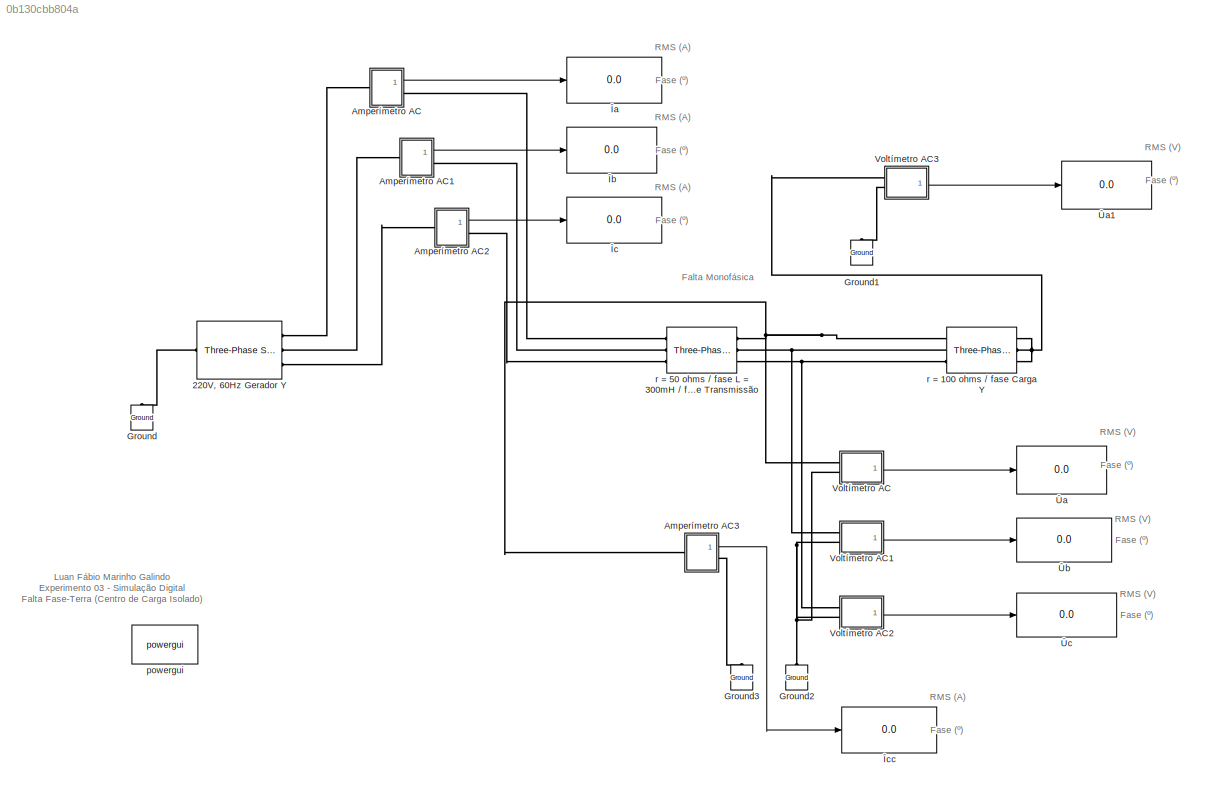
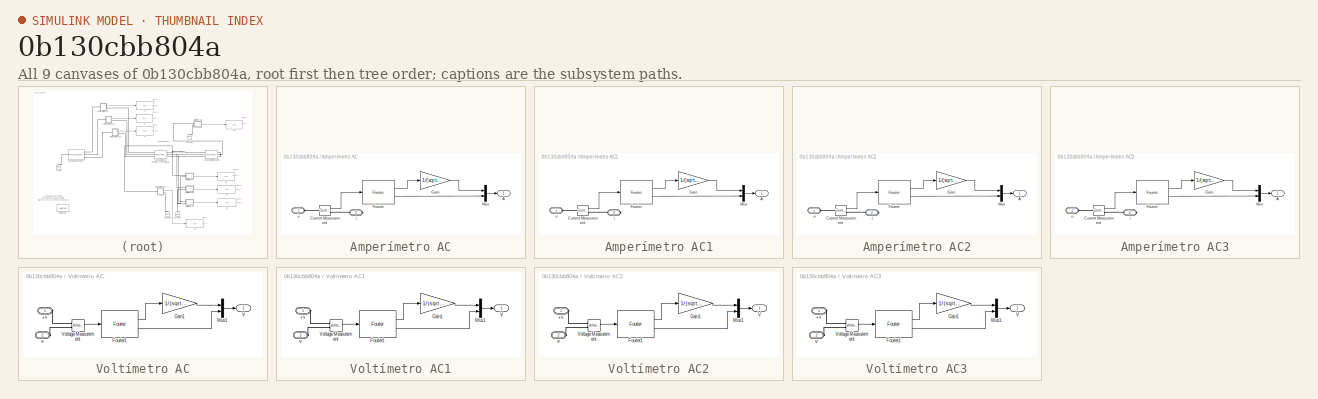
[diagram: thumbnail index - all 9 canvases of the model, root first then tree order]
MODEL mdl_0b130cbb804a
KIND model
CONFIG AbsTol = auto
CONFIG EnableMultiTasking = on
CONFIG FixedStep = auto
CONFIG MaxStep = auto
CONFIG MinStep = auto
CONFIG RelTol = 1e-5
CONFIG SampleTimeConstraint = Unconstrained
CONFIG SolverName = ode23t
CONFIG StartTime = 0.0
CONFIG StopTime = 0.1
BLOCK [Reference] 220V, 60Hz Gerador Y  REF=spsThreePhaseSourceLib/Three-Phase Source
  Ports = [0, 0, 0, 0, 0, 1, 3]
  SourceBlock = spsThreePhaseSourceLib/Three-Phase Source
  SourceProductBaseCode = PS
  SourceType = Three-Phase Source
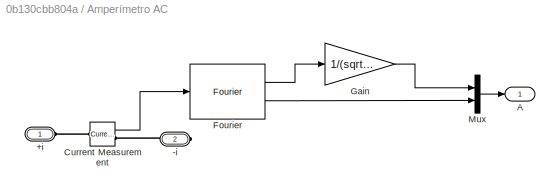
BLOCK [SubSystem] Amperímetro AC
  Ports = [0, 1, 0, 0, 0, 1, 1]
  RequestExecContextInheritance = off
BLOCK [PMIOPort] Amperímetro AC/+i
  Side = Left
BLOCK [PMIOPort] Amperímetro AC/-i
  Port = 2
  Side = Right
BLOCK [Outport] Amperímetro AC/A
BLOCK [Reference] Amperímetro AC/Current Measurement  REF=spsCurrentMeasurementLib/Current Measurement
  Ports = [0, 1, 0, 0, 0, 1, 1]
  SourceBlock = spsCurrentMeasurementLib/Current Measurement
  SourceProductBaseCode = PS
  SourceType = Current Measurement
BLOCK [Reference] Amperímetro AC/Fourier  REF=powerlib_extras/Measurements/Fourier
  Ports = [1, 2]
  SourceBlock = powerlib_extras/Measurements/Fourier
  SourceProductBaseCode = PS
  SourceType = Fourier analyser
BLOCK [Gain] Amperímetro AC/Gain
  Gain = 1/(sqrt(2))
BLOCK [Mux] Amperímetro AC/Mux
  DisplayOption = bar
  Inputs = 2
  Ports = [2, 1]
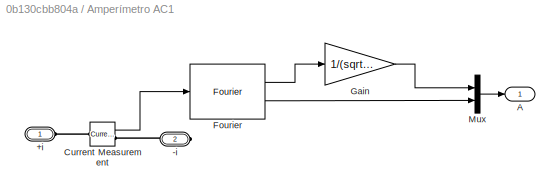
BLOCK [SubSystem] Amperímetro AC1
  Ports = [0, 1, 0, 0, 0, 1, 1]
  RequestExecContextInheritance = off
BLOCK [PMIOPort] Amperímetro AC1/+i
  Side = Left
BLOCK [PMIOPort] Amperímetro AC1/-i
  Port = 2
  Side = Right
BLOCK [Outport] Amperímetro AC1/A
BLOCK [Reference] Amperímetro AC1/Current Measurement  REF=spsCurrentMeasurementLib/Current Measurement
  Ports = [0, 1, 0, 0, 0, 1, 1]
  SourceBlock = spsCurrentMeasurementLib/Current Measurement
  SourceProductBaseCode = PS
  SourceType = Current Measurement
BLOCK [Reference] Amperímetro AC1/Fourier  REF=powerlib_extras/Measurements/Fourier
  Ports = [1, 2]
  SourceBlock = powerlib_extras/Measurements/Fourier
  SourceProductBaseCode = PS
  SourceType = Fourier analyser
BLOCK [Gain] Amperímetro AC1/Gain
  Gain = 1/(sqrt(2))
BLOCK [Mux] Amperímetro AC1/Mux
  DisplayOption = bar
  Inputs = 2
  Ports = [2, 1]
BLOCK [SubSystem] Amperímetro AC2
  Ports = [0, 1, 0, 0, 0, 1, 1]
  RequestExecContextInheritance = off
BLOCK [PMIOPort] Amperímetro AC2/+i
  Side = Left
BLOCK [PMIOPort] Amperímetro AC2/-i
  Port = 2
  Side = Right
BLOCK [Outport] Amperímetro AC2/A
BLOCK [Reference] Amperímetro AC2/Current Measurement  REF=spsCurrentMeasurementLib/Current Measurement
  Ports = [0, 1, 0, 0, 0, 1, 1]
  SourceBlock = spsCurrentMeasurementLib/Current Measurement
  SourceProductBaseCode = PS
  SourceType = Current Measurement
BLOCK [Reference] Amperímetro AC2/Fourier  REF=powerlib_extras/Measurements/Fourier
  Ports = [1, 2]
  SourceBlock = powerlib_extras/Measurements/Fourier
  SourceProductBaseCode = PS
  SourceType = Fourier analyser
BLOCK [Gain] Amperímetro AC2/Gain
  Gain = 1/(sqrt(2))
BLOCK [Mux] Amperímetro AC2/Mux
  DisplayOption = bar
  Inputs = 2
  Ports = [2, 1]
BLOCK [SubSystem] Amperímetro AC3
  Ports = [0, 1, 0, 0, 0, 1, 1]
  RequestExecContextInheritance = off
BLOCK [PMIOPort] Amperímetro AC3/+i
  Side = Left
BLOCK [PMIOPort] Amperímetro AC3/-i
  Port = 2
  Side = Right
BLOCK [Outport] Amperímetro AC3/A
BLOCK [Reference] Amperímetro AC3/Current Measurement  REF=spsCurrentMeasurementLib/Current Measurement
  Ports = [0, 1, 0, 0, 0, 1, 1]
  SourceBlock = spsCurrentMeasurementLib/Current Measurement
  SourceProductBaseCode = PS
  SourceType = Current Measurement
BLOCK [Reference] Amperímetro AC3/Fourier  REF=powerlib_extras/Measurements/Fourier
  Ports = [1, 2]
  SourceBlock = powerlib_extras/Measurements/Fourier
  SourceProductBaseCode = PS
  SourceType = Fourier analyser
BLOCK [Gain] Amperímetro AC3/Gain
  Gain = 1/(sqrt(2))
BLOCK [Mux] Amperímetro AC3/Mux
  DisplayOption = bar
  Inputs = 2
  Ports = [2, 1]
BLOCK [Reference] Ground  REF=spsGroundLib/Ground
  NameLocation = right
  Ports = [0, 0, 0, 0, 0, 1]
  SourceBlock = spsGroundLib/Ground
  SourceProductBaseCode = PS
  SourceType = Ground
BLOCK [Reference] Ground1  REF=spsGroundLib/Ground
  NameLocation = right
  Ports = [0, 0, 0, 0, 0, 1]
  SourceBlock = spsGroundLib/Ground
  SourceProductBaseCode = PS
  SourceType = Ground
BLOCK [Reference] Ground2  REF=spsGroundLib/Ground
  NameLocation = right
  Ports = [0, 0, 0, 0, 0, 1]
  SourceBlock = spsGroundLib/Ground
  SourceProductBaseCode = PS
  SourceType = Ground
BLOCK [Reference] Ground3  REF=spsGroundLib/Ground
  NameLocation = right
  Ports = [0, 0, 0, 0, 0, 1]
  SourceBlock = spsGroundLib/Ground
  SourceProductBaseCode = PS
  SourceType = Ground
BLOCK [SubSystem] Voltímetro AC
  Ports = [0, 1, 0, 0, 0, 2]
  RequestExecContextInheritance = off
BLOCK [PMIOPort] Voltímetro AC/+v
  Side = Left
BLOCK [PMIOPort] Voltímetro AC/-v
  Port = 2
  Side = Left
BLOCK [Reference] Voltímetro AC/Fourier1  REF=powerlib_extras/Measurements/Fourier
  Ports = [1, 2]
  SourceBlock = powerlib_extras/Measurements/Fourier
  SourceProductBaseCode = PS
  SourceType = Fourier analyser
BLOCK [Gain] Voltímetro AC/Gain1
  Gain = 1/(sqrt(2))
BLOCK [Mux] Voltímetro AC/Mux1
  DisplayOption = bar
  Inputs = 2
  Ports = [2, 1]
BLOCK [Outport] Voltímetro AC/V
BLOCK [Reference] Voltímetro AC/Voltage Measurement  REF=spsVoltageMeasurementLib/Voltage Measurement
  Ports = [0, 1, 0, 0, 0, 2]
  SourceBlock = spsVoltageMeasurementLib/Voltage Measurement
  SourceProductBaseCode = PS
  SourceType = Voltage Measurement
BLOCK [SubSystem] Voltímetro AC1
  Ports = [0, 1, 0, 0, 0, 2]
  RequestExecContextInheritance = off
BLOCK [PMIOPort] Voltímetro AC1/+v
  Side = Left
BLOCK [PMIOPort] Voltímetro AC1/-v
  Port = 2
  Side = Left
BLOCK [Reference] Voltímetro AC1/Fourier1  REF=powerlib_extras/Measurements/Fourier
  Ports = [1, 2]
  SourceBlock = powerlib_extras/Measurements/Fourier
  SourceProductBaseCode = PS
  SourceType = Fourier analyser
BLOCK [Gain] Voltímetro AC1/Gain1
  Gain = 1/(sqrt(2))
BLOCK [Mux] Voltímetro AC1/Mux1
  DisplayOption = bar
  Inputs = 2
  Ports = [2, 1]
BLOCK [Outport] Voltímetro AC1/V
BLOCK [Reference] Voltímetro AC1/Voltage Measurement  REF=spsVoltageMeasurementLib/Voltage Measurement
  Ports = [0, 1, 0, 0, 0, 2]
  SourceBlock = spsVoltageMeasurementLib/Voltage Measurement
  SourceProductBaseCode = PS
  SourceType = Voltage Measurement
BLOCK [SubSystem] Voltímetro AC2
  Ports = [0, 1, 0, 0, 0, 2]
  RequestExecContextInheritance = off
BLOCK [PMIOPort] Voltímetro AC2/+v
  Side = Left
BLOCK [PMIOPort] Voltímetro AC2/-v
  Port = 2
  Side = Left
BLOCK [Reference] Voltímetro AC2/Fourier1  REF=powerlib_extras/Measurements/Fourier
  Ports = [1, 2]
  SourceBlock = powerlib_extras/Measurements/Fourier
  SourceProductBaseCode = PS
  SourceType = Fourier analyser
BLOCK [Gain] Voltímetro AC2/Gain1
  Gain = 1/(sqrt(2))
BLOCK [Mux] Voltímetro AC2/Mux1
  DisplayOption = bar
  Inputs = 2
  Ports = [2, 1]
BLOCK [Outport] Voltímetro AC2/V
BLOCK [Reference] Voltímetro AC2/Voltage Measurement  REF=spsVoltageMeasurementLib/Voltage Measurement
  Ports = [0, 1, 0, 0, 0, 2]
  SourceBlock = spsVoltageMeasurementLib/Voltage Measurement
  SourceProductBaseCode = PS
  SourceType = Voltage Measurement
BLOCK [SubSystem] Voltímetro AC3
  Ports = [0, 1, 0, 0, 0, 2]
  RequestExecContextInheritance = off
BLOCK [PMIOPort] Voltímetro AC3/+v
  Side = Left
BLOCK [PMIOPort] Voltímetro AC3/-v
  Port = 2
  Side = Left
BLOCK [Reference] Voltímetro AC3/Fourier1  REF=powerlib_extras/Measurements/Fourier
  Ports = [1, 2]
  SourceBlock = powerlib_extras/Measurements/Fourier
  SourceProductBaseCode = PS
  SourceType = Fourier analyser
BLOCK [Gain] Voltímetro AC3/Gain1
  Gain = 1/(sqrt(2))
BLOCK [Mux] Voltímetro AC3/Mux1
  DisplayOption = bar
  Inputs = 2
  Ports = [2, 1]
BLOCK [Outport] Voltímetro AC3/V
BLOCK [Reference] Voltímetro AC3/Voltage Measurement  REF=spsVoltageMeasurementLib/Voltage Measurement
  Ports = [0, 1, 0, 0, 0, 2]
  SourceBlock = spsVoltageMeasurementLib/Voltage Measurement
  SourceProductBaseCode = PS
  SourceType = Voltage Measurement
BLOCK [Reference] powergui  REF=spspowerguiLib/powergui
  Ports = []
  Priority = 1
  SourceBlock = spspowerguiLib/powergui
  SourceProductBaseCode = PS
  SourceType = PSB option menu block
BLOCK [Reference] r = 100 ohms // fase Carga Y  REF=spsThreePhaseSeriesRLCBranchLib/Three-Phase
Series RLC Branch
  AttributesFormatString = \n
  Ports = [0, 0, 0, 0, 0, 3, 3]
  SourceBlock = spsThreePhaseSeriesRLCBranchLib/Three-Phase\nSeries RLC Branch
  SourceProductBaseCode = PS
  SourceType = Three-Phase Series RLC Branch
BLOCK [Reference] r = 50 ohms // fase L = 300mH // fase Linha de Transmissão  REF=spsThreePhaseSeriesRLCBranchLib/Three-Phase
Series RLC Branch
  AttributesFormatString = \n
  Ports = [0, 0, 0, 0, 0, 3, 3]
  SourceBlock = spsThreePhaseSeriesRLCBranchLib/Three-Phase\nSeries RLC Branch
  SourceProductBaseCode = PS
  SourceType = Three-Phase Series RLC Branch
BLOCK [Display] Îa
  Decimation = 1
  Format = bank
  Ports = [1]
BLOCK [Display] Îb
  Decimation = 1
  Format = bank
  Ports = [1]
BLOCK [Display] Îc
  Decimation = 1
  Format = bank
  Ports = [1]
BLOCK [Display] Îcc
  Decimation = 1
  Format = bank
  Ports = [1]
BLOCK [Display] Ûa
  Decimation = 1
  Format = bank
  Ports = [1]
BLOCK [Display] Ûa1
  Decimation = 1
  Format = bank
  Ports = [1]
BLOCK [Display] Ûb
  Decimation = 1
  Format = bank
  Ports = [1]
BLOCK [Display] Ûc
  Decimation = 1
  Format = bank
  Ports = [1]
ANNOTATION (root): Falta Monofásica
ANNOTATION (root): Fase (º)
ANNOTATION (root): Luan Fábio Marinho Galindo Experimento 03 - Simulação Digital Falta Fase-Terra (Centro de Carga Isolado)
ANNOTATION (root): RMS (A)
ANNOTATION (root): RMS (V)
LINE Amperímetro AC/Current Measurement:1 -> Amperímetro AC/Fourier:1
LINE Amperímetro AC/Fourier:1 -> Amperímetro AC/Gain:1
LINE Amperímetro AC/Fourier:2 -> Amperímetro AC/Mux:2
LINE Amperímetro AC/Gain:1 -> Amperímetro AC/Mux:1
LINE Amperímetro AC/Mux:1 -> Amperímetro AC/A:1
LINE Amperímetro AC1/Current Measurement:1 -> Amperímetro AC1/Fourier:1
LINE Amperímetro AC1/Fourier:1 -> Amperímetro AC1/Gain:1
LINE Amperímetro AC1/Fourier:2 -> Amperímetro AC1/Mux:2
LINE Amperímetro AC1/Gain:1 -> Amperímetro AC1/Mux:1
LINE Amperímetro AC1/Mux:1 -> Amperímetro AC1/A:1
LINE Amperímetro AC1:1 -> Îb:1
LINE Amperímetro AC2/Current Measurement:1 -> Amperímetro AC2/Fourier:1
LINE Amperímetro AC2/Fourier:1 -> Amperímetro AC2/Gain:1
LINE Amperímetro AC2/Fourier:2 -> Amperímetro AC2/Mux:2
LINE Amperímetro AC2/Gain:1 -> Amperímetro AC2/Mux:1
LINE Amperímetro AC2/Mux:1 -> Amperímetro AC2/A:1
LINE Amperímetro AC2:1 -> Îc:1
LINE Amperímetro AC3/Current Measurement:1 -> Amperímetro AC3/Fourier:1
LINE Amperímetro AC3/Fourier:1 -> Amperímetro AC3/Gain:1
LINE Amperímetro AC3/Fourier:2 -> Amperímetro AC3/Mux:2
LINE Amperímetro AC3/Gain:1 -> Amperímetro AC3/Mux:1
LINE Amperímetro AC3/Mux:1 -> Amperímetro AC3/A:1
LINE Amperímetro AC3:1 -> Îcc:1
LINE Amperímetro AC:1 -> Îa:1
LINE Voltímetro AC/Fourier1:1 -> Voltímetro AC/Gain1:1
LINE Voltímetro AC/Fourier1:2 -> Voltímetro AC/Mux1:2
LINE Voltímetro AC/Gain1:1 -> Voltímetro AC/Mux1:1
LINE Voltímetro AC/Mux1:1 -> Voltímetro AC/V:1
LINE Voltímetro AC/Voltage Measurement:1 -> Voltímetro AC/Fourier1:1
LINE Voltímetro AC1/Fourier1:1 -> Voltímetro AC1/Gain1:1
LINE Voltímetro AC1/Fourier1:2 -> Voltímetro AC1/Mux1:2
LINE Voltímetro AC1/Gain1:1 -> Voltímetro AC1/Mux1:1
LINE Voltímetro AC1/Mux1:1 -> Voltímetro AC1/V:1
LINE Voltímetro AC1/Voltage Measurement:1 -> Voltímetro AC1/Fourier1:1
LINE Voltímetro AC1:1 -> Ûb:1
LINE Voltímetro AC2/Fourier1:1 -> Voltímetro AC2/Gain1:1
LINE Voltímetro AC2/Fourier1:2 -> Voltímetro AC2/Mux1:2
LINE Voltímetro AC2/Gain1:1 -> Voltímetro AC2/Mux1:1
LINE Voltímetro AC2/Mux1:1 -> Voltímetro AC2/V:1
LINE Voltímetro AC2/Voltage Measurement:1 -> Voltímetro AC2/Fourier1:1
LINE Voltímetro AC2:1 -> Ûc:1
LINE Voltímetro AC3/Fourier1:1 -> Voltímetro AC3/Gain1:1
LINE Voltímetro AC3/Fourier1:2 -> Voltímetro AC3/Mux1:2
LINE Voltímetro AC3/Gain1:1 -> Voltímetro AC3/Mux1:1
LINE Voltímetro AC3/Mux1:1 -> Voltímetro AC3/V:1
LINE Voltímetro AC3/Voltage Measurement:1 -> Voltímetro AC3/Fourier1:1
LINE Voltímetro AC3:1 -> Ûa1:1
LINE Voltímetro AC:1 -> Ûa:1
PLINE 220V, 60Hz Gerador Y:LConn1 -- Ground:LConn1
PLINE 220V, 60Hz Gerador Y:RConn1 -- Amperímetro AC:LConn1
PLINE 220V, 60Hz Gerador Y:RConn2 -- Amperímetro AC1:LConn1
PLINE 220V, 60Hz Gerador Y:RConn3 -- Amperímetro AC2:LConn1
PLINE Amperímetro AC/+i:RConn1 -- Amperímetro AC/Current Measurement:LConn1
PLINE Amperímetro AC/-i:RConn1 -- Amperímetro AC/Current Measurement:RConn1
PLINE Amperímetro AC1/+i:RConn1 -- Amperímetro AC1/Current Measurement:LConn1
PLINE Amperímetro AC1/-i:RConn1 -- Amperímetro AC1/Current Measurement:RConn1
PLINE Amperímetro AC1:RConn1 -- r = 50 ohms // fase L = 300mH // fase Linha de Transmissão:LConn2
PLINE Amperímetro AC2/+i:RConn1 -- Amperímetro AC2/Current Measurement:LConn1
PLINE Amperímetro AC2/-i:RConn1 -- Amperímetro AC2/Current Measurement:RConn1
PLINE Amperímetro AC2:RConn1 -- r = 50 ohms // fase L = 300mH // fase Linha de Transmissão:LConn3
PLINE Amperímetro AC3/+i:RConn1 -- Amperímetro AC3/Current Measurement:LConn1
PLINE Amperímetro AC3/-i:RConn1 -- Amperímetro AC3/Current Measurement:RConn1
PNET net1: Amperímetro AC3:LConn1 -- Voltímetro AC:LConn1 -- r = 100 ohms // fase Carga Y:LConn1 -- r = 50 ohms // fase L = 300mH // fase Linha de Transmissão:RConn1
PLINE Amperímetro AC3:RConn1 -- Ground3:LConn1
PLINE Amperímetro AC:RConn1 -- r = 50 ohms // fase L = 300mH // fase Linha de Transmissão:LConn1
PLINE Ground1:LConn1 -- Voltímetro AC3:LConn2
PNET net2: Ground2:LConn1 -- Voltímetro AC1:LConn2 -- Voltímetro AC2:LConn2 -- Voltímetro AC:LConn2
PLINE Voltímetro AC/+v:RConn1 -- Voltímetro AC/Voltage Measurement:LConn1
PLINE Voltímetro AC/-v:RConn1 -- Voltímetro AC/Voltage Measurement:LConn2
PLINE Voltímetro AC1/+v:RConn1 -- Voltímetro AC1/Voltage Measurement:LConn1
PLINE Voltímetro AC1/-v:RConn1 -- Voltímetro AC1/Voltage Measurement:LConn2
PNET net3: Voltímetro AC1:LConn1 -- r = 100 ohms // fase Carga Y:LConn2 -- r = 50 ohms // fase L = 300mH // fase Linha de Transmissão:RConn2
PLINE Voltímetro AC2/+v:RConn1 -- Voltímetro AC2/Voltage Measurement:LConn1
PLINE Voltímetro AC2/-v:RConn1 -- Voltímetro AC2/Voltage Measurement:LConn2
PNET net4: Voltímetro AC2:LConn1 -- r = 100 ohms // fase Carga Y:LConn3 -- r = 50 ohms // fase L = 300mH // fase Linha de Transmissão:RConn3
PLINE Voltímetro AC3/+v:RConn1 -- Voltímetro AC3/Voltage Measurement:LConn1
PLINE Voltímetro AC3/-v:RConn1 -- Voltímetro AC3/Voltage Measurement:LConn2
PNET net5: Voltímetro AC3:LConn1 -- r = 100 ohms // fase Carga Y:RConn1 -- r = 100 ohms // fase Carga Y:RConn2 -- r = 100 ohms // fase Carga Y:RConn3
note: PNET lines group multi-terminal physical nets as a canonical sorted terminal list (undirected conserving connections); 2-terminal nets keep the pairwise PLINE form
